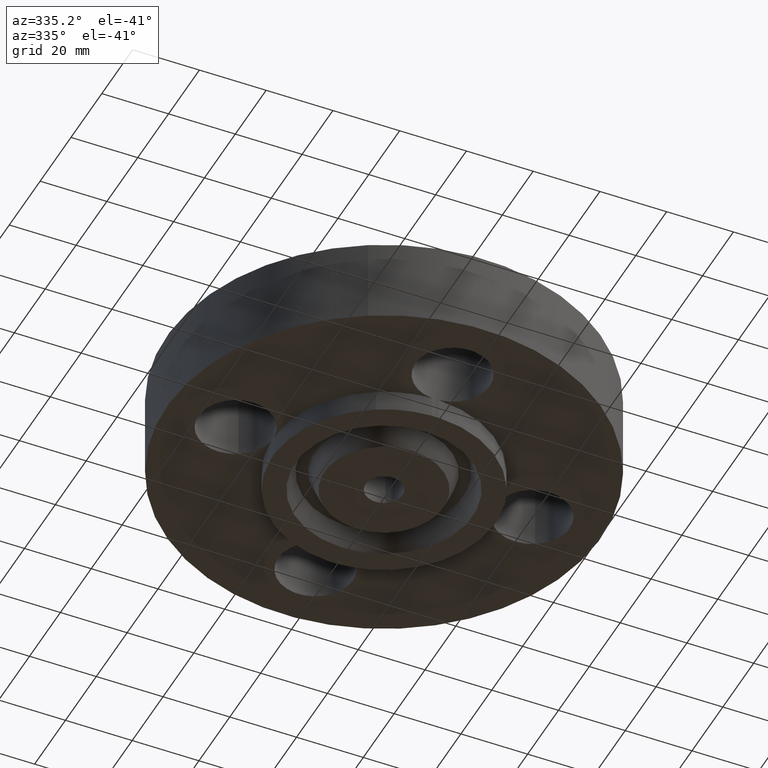
[diagram: clean part render]
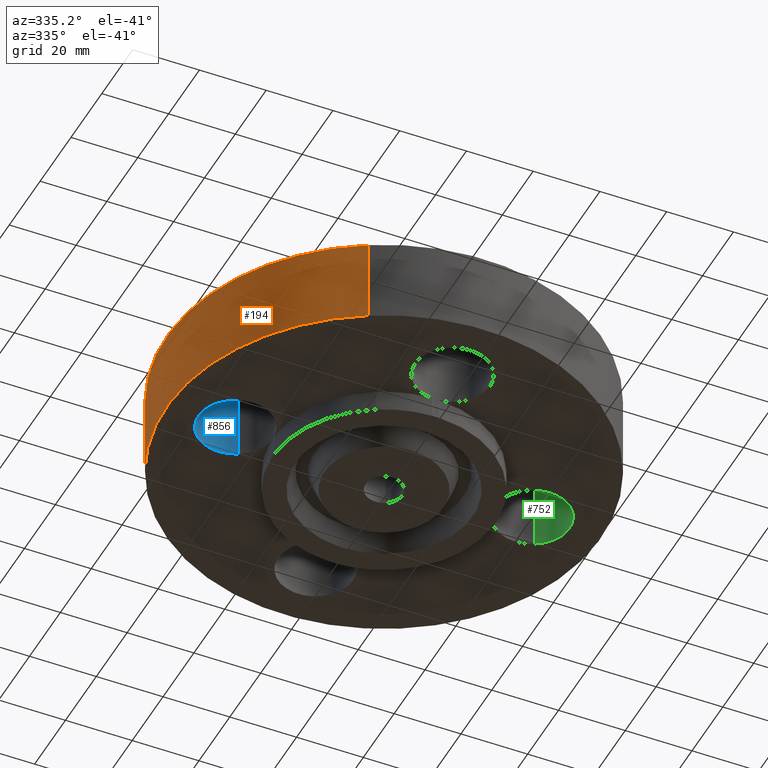
[diagram: same view with three faces highlighted in distinct colors, each labeled with its STEP entity id]
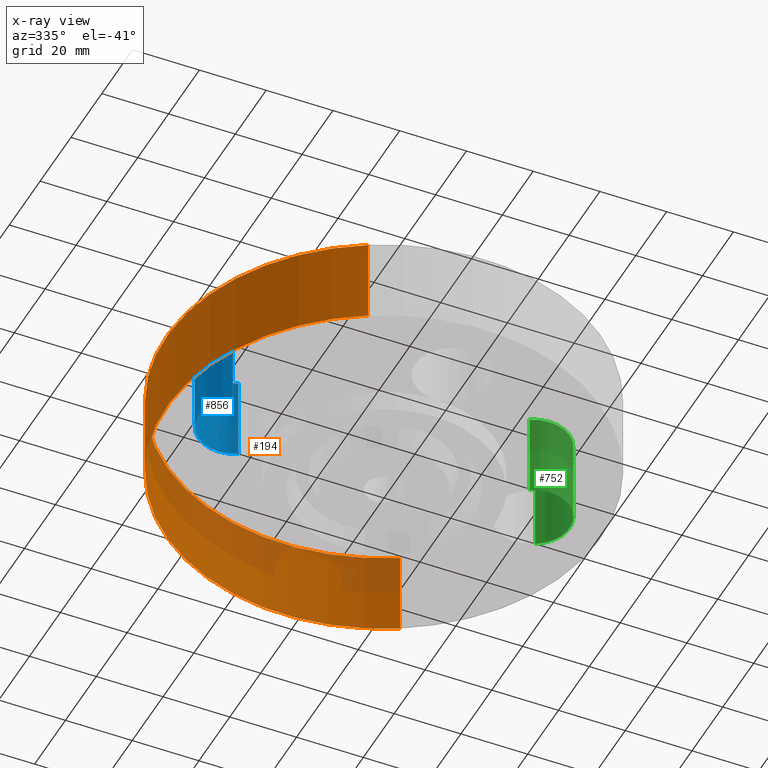
[diagram: x-ray of the same camera — body ghosted, the three highlighted faces saturated]
A machine part, auxiliary view with three faces highlighted in distinct colors.
The next image is the same camera in x-ray (body ghosted, the three faces saturated) — at least one of them is partly hidden behind the body in this view.
Their STEP definitions:

[orange] entity #194 — the highlighted cylindrical surface (partial cylindrical patch) has radius 65.024 mm, axis along (0, 0, -1).
#158=AXIS2_PLACEMENT_3D('Cylinder Axis2P3D',#155,#156,#157) ;
#162=AXIS2_PLACEMENT_3D('Circle Axis2P3D',#160,#161,$) ;
#178=AXIS2_PLACEMENT_3D('Circle Axis2P3D',#176,#177,$) ;
#155=CARTESIAN_POINT('Axis2P3D Location',(0.,0.,1.25)) ;
#160=CARTESIAN_POINT('Axis2P3D Location',(0.,0.,1.39870617276E-016)) ;
#164=CARTESIAN_POINT('Vertex',(-1.22732937883,-2.24661135845,2.79741234551E-016)) ;
#166=CARTESIAN_POINT('Vertex',(1.22732937883,2.24661135845,2.79741234551E-016)) ;
#169=CARTESIAN_POINT('Line Origine',(-1.22732937883,-2.24661135845,0.500000000002)) ;
#173=CARTESIAN_POINT('Vertex',(-1.22732937883,-2.24661135845,1.)) ;
#176=CARTESIAN_POINT('Axis2P3D Location',(0.,0.,1.)) ;
#180=CARTESIAN_POINT('Vertex',(1.22732937883,2.24661135845,1.)) ;
#183=CARTESIAN_POINT('Line Origine',(1.22732937883,2.24661135845,0.500000000002)) ;
#156=DIRECTION('Axis2P3D Direction',(0.,0.,-0.0393700787402)) ;
#157=DIRECTION('Axis2P3D XDirection',(0.0188750212049,0.0345504945626,0.)) ;
#161=DIRECTION('Axis2P3D Direction',(0.,0.,-0.0393700787402)) ;
#170=DIRECTION('Vector Direction',(0.,0.,-0.0393700787402)) ;
#177=DIRECTION('Axis2P3D Direction',(0.,0.,-0.0393700787402)) ;
#184=DIRECTION('Vector Direction',(0.,0.,-0.0393700787402)) ;
#171=VECTOR('Line Direction',#170,0.0393700787402) ;
#185=VECTOR('Line Direction',#184,0.0393700787402) ;
#189=ORIENTED_EDGE('',*,*,#168,.F.) ;
#190=ORIENTED_EDGE('',*,*,#175,.T.) ;
#191=ORIENTED_EDGE('',*,*,#182,.T.) ;
#192=ORIENTED_EDGE('',*,*,#187,.F.) ;
#194=ADVANCED_FACE('PartBody',(#193),#159,.T.) ;
#163=CIRCLE('generated circle',#162,2.56000000001) ;
#179=CIRCLE('generated circle',#178,2.56000000001) ;
#159=CYLINDRICAL_SURFACE('generated cylinder',#158,2.56000000001) ;
#168=EDGE_CURVE('',#165,#167,#163,.T.) ;
#175=EDGE_CURVE('',#165,#174,#172,.F.) ;
#182=EDGE_CURVE('',#174,#181,#179,.T.) ;
#187=EDGE_CURVE('',#167,#181,#186,.F.) ;
#188=EDGE_LOOP('',(#189,#190,#191,#192)) ;
#193=FACE_OUTER_BOUND('',#188,.T.) ;
#172=LINE('Line',#169,#171) ;
#186=LINE('Line',#183,#185) ;
#165=VERTEX_POINT('',#164) ;
#167=VERTEX_POINT('',#166) ;
#174=VERTEX_POINT('',#173) ;
#181=VERTEX_POINT('',#180) ;

[blue] entity #856 — the highlighted cylindrical surface (partial cylindrical patch) has radius 11.176 mm, axis along (0, 0, -1).
#672=AXIS2_PLACEMENT_3D('Circle Axis2P3D',#670,#671,$) ;
#829=AXIS2_PLACEMENT_3D('Cylinder Axis2P3D',#826,#827,#828) ;
#847=AXIS2_PLACEMENT_3D('Circle Axis2P3D',#845,#846,$) ;
#667=CARTESIAN_POINT('Vertex',(-1.53905276302,0.386136327233,0.)) ;
#670=CARTESIAN_POINT('Axis2P3D Location',(-1.75000000001,-2.79741234551E-016,0.)) ;
#674=CARTESIAN_POINT('Vertex',(-1.96094723699,-0.386136327233,0.)) ;
#826=CARTESIAN_POINT('Axis2P3D Location',(-1.75000000001,-3.21469784777E-016,0.99606299213)) ;
#831=CARTESIAN_POINT('Line Origine',(-1.96094723699,-0.386136327233,0.375000000002)) ;
#835=CARTESIAN_POINT('Vertex',(-1.96094723699,-0.386136327233,1.)) ;
#838=CARTESIAN_POINT('Line Origine',(-1.53905276302,0.386136327233,0.375000000002)) ;
#842=CARTESIAN_POINT('Vertex',(-1.53905276302,0.386136327233,1.)) ;
#845=CARTESIAN_POINT('Axis2P3D Location',(-1.75000000001,-3.21469784777E-016,1.)) ;
#671=DIRECTION('Axis2P3D Direction',(0.,0.,-0.0393700787402)) ;
#827=DIRECTION('Axis2P3D Direction',(0.,0.,-0.0393700787402)) ;
#828=DIRECTION('Axis2P3D XDirection',(0.0188750212049,0.0345504945626,0.)) ;
#832=DIRECTION('Vector Direction',(0.,0.,-0.0393700787402)) ;
#839=DIRECTION('Vector Direction',(0.,0.,-0.0393700787402)) ;
#846=DIRECTION('Axis2P3D Direction',(0.,0.,-0.0393700787402)) ;
#833=VECTOR('Line Direction',#832,0.0393700787402) ;
#840=VECTOR('Line Direction',#839,0.0393700787402) ;
#851=ORIENTED_EDGE('',*,*,#837,.F.) ;
#852=ORIENTED_EDGE('',*,*,#676,.T.) ;
#853=ORIENTED_EDGE('',*,*,#844,.T.) ;
#854=ORIENTED_EDGE('',*,*,#849,.F.) ;
#856=ADVANCED_FACE('PartBody',(#855),#830,.F.) ;
#673=CIRCLE('generated circle',#672,0.440000000002) ;
#848=CIRCLE('generated circle',#847,0.440000000002) ;
#830=CYLINDRICAL_SURFACE('generated cylinder',#829,0.440000000002) ;
#676=EDGE_CURVE('',#675,#668,#673,.T.) ;
#837=EDGE_CURVE('',#675,#836,#834,.F.) ;
#844=EDGE_CURVE('',#668,#843,#841,.F.) ;
#849=EDGE_CURVE('',#836,#843,#848,.T.) ;
#850=EDGE_LOOP('',(#851,#852,#853,#854)) ;
#855=FACE_OUTER_BOUND('',#850,.T.) ;
#834=LINE('Line',#831,#833) ;
#841=LINE('Line',#838,#840) ;
#668=VERTEX_POINT('',#667) ;
#675=VERTEX_POINT('',#674) ;
#836=VERTEX_POINT('',#835) ;
#843=VERTEX_POINT('',#842) ;

[green] entity #752 — the highlighted cylindrical surface (partial cylindrical patch) has radius 11.176 mm, axis along (0, -0, -1).
#653=AXIS2_PLACEMENT_3D('Circle Axis2P3D',#651,#652,$) ;
#725=AXIS2_PLACEMENT_3D('Cylinder Axis2P3D',#722,#723,#724) ;
#743=AXIS2_PLACEMENT_3D('Circle Axis2P3D',#741,#742,$) ;
#648=CARTESIAN_POINT('Vertex',(1.53905276302,-0.386136327233,0.)) ;
#651=CARTESIAN_POINT('Axis2P3D Location',(1.75000000001,-2.79741234551E-016,0.)) ;
#655=CARTESIAN_POINT('Vertex',(1.96094723699,0.386136327233,0.)) ;
#722=CARTESIAN_POINT('Axis2P3D Location',(1.75000000001,-1.72584639625E-016,0.99606299213)) ;
#727=CARTESIAN_POINT('Line Origine',(1.96094723699,0.386136327233,0.375000000002)) ;
#731=CARTESIAN_POINT('Vertex',(1.96094723699,0.386136327233,1.)) ;
#734=CARTESIAN_POINT('Line Origine',(1.53905276302,-0.386136327233,0.375000000002)) ;
#738=CARTESIAN_POINT('Vertex',(1.53905276302,-0.386136327233,1.)) ;
#741=CARTESIAN_POINT('Axis2P3D Location',(1.75000000001,-1.72584639625E-016,1.)) ;
#652=DIRECTION('Axis2P3D Direction',(0.,0.,-0.0393700787402)) ;
#723=DIRECTION('Axis2P3D Direction',(0.,-0.,-0.0393700787402)) ;
#724=DIRECTION('Axis2P3D XDirection',(-0.0188750212049,-0.0345504945626,0.)) ;
#728=DIRECTION('Vector Direction',(0.,0.,-0.0393700787402)) ;
#735=DIRECTION('Vector Direction',(0.,0.,-0.0393700787402)) ;
#742=DIRECTION('Axis2P3D Direction',(0.,-0.,-0.0393700787402)) ;
#729=VECTOR('Line Direction',#728,0.0393700787402) ;
#736=VECTOR('Line Direction',#735,0.0393700787402) ;
#747=ORIENTED_EDGE('',*,*,#733,.F.) ;
#748=ORIENTED_EDGE('',*,*,#657,.T.) ;
#749=ORIENTED_EDGE('',*,*,#740,.T.) ;
#750=ORIENTED_EDGE('',*,*,#745,.F.) ;
#752=ADVANCED_FACE('PartBody',(#751),#726,.F.) ;
#654=CIRCLE('generated circle',#653,0.440000000002) ;
#744=CIRCLE('generated circle',#743,0.440000000002) ;
#726=CYLINDRICAL_SURFACE('generated cylinder',#725,0.440000000002) ;
#657=EDGE_CURVE('',#656,#649,#654,.T.) ;
#733=EDGE_CURVE('',#656,#732,#730,.F.) ;
#740=EDGE_CURVE('',#649,#739,#737,.F.) ;
#745=EDGE_CURVE('',#732,#739,#744,.T.) ;
#746=EDGE_LOOP('',(#747,#748,#749,#750)) ;
#751=FACE_OUTER_BOUND('',#746,.T.) ;
#730=LINE('Line',#727,#729) ;
#737=LINE('Line',#734,#736) ;
#649=VERTEX_POINT('',#648) ;
#656=VERTEX_POINT('',#655) ;
#732=VERTEX_POINT('',#731) ;
#739=VERTEX_POINT('',#738) ;